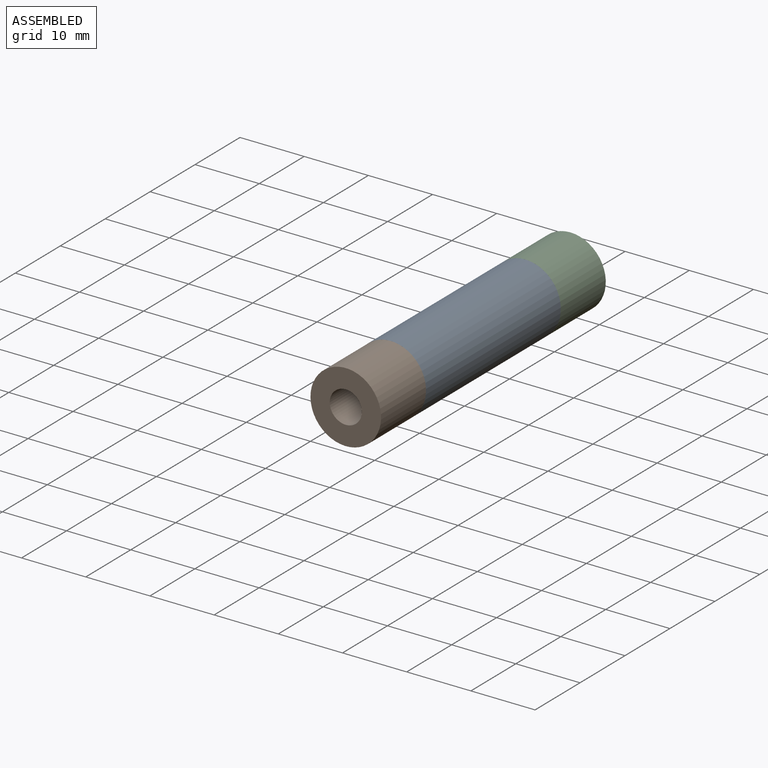
[diagram: assembled view]
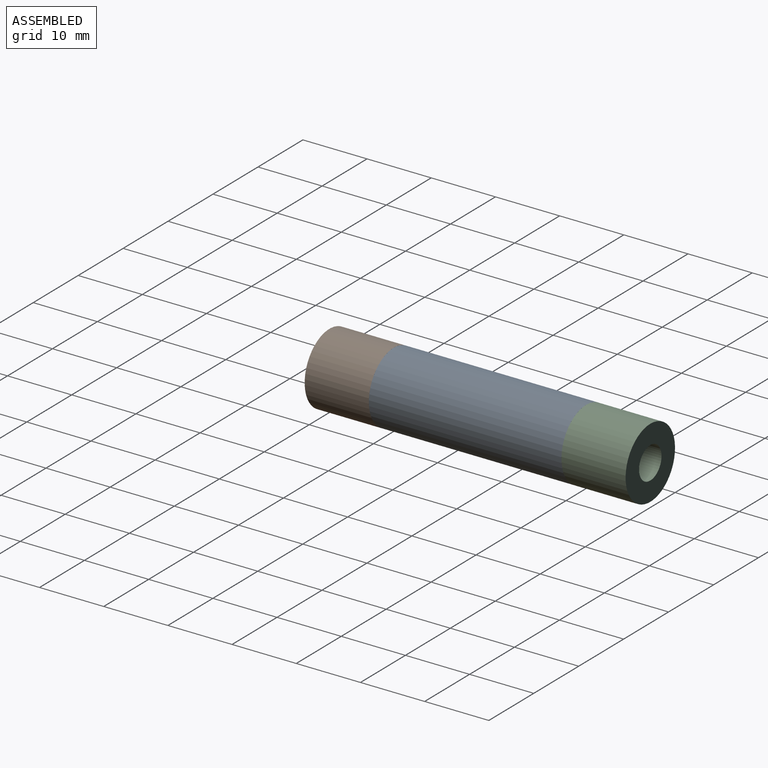
[diagram: assembled view, second angle]
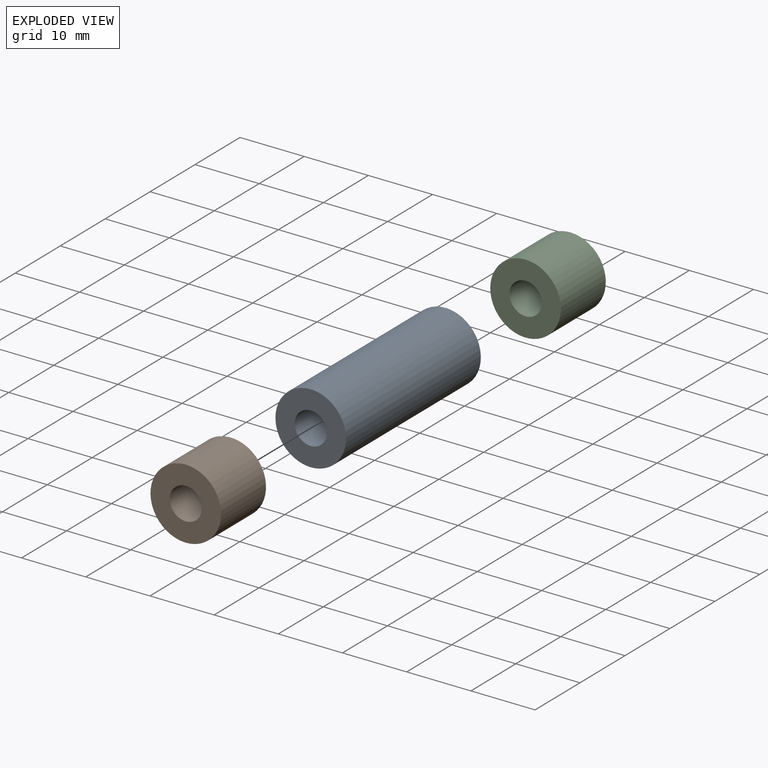
[diagram: exploded view]
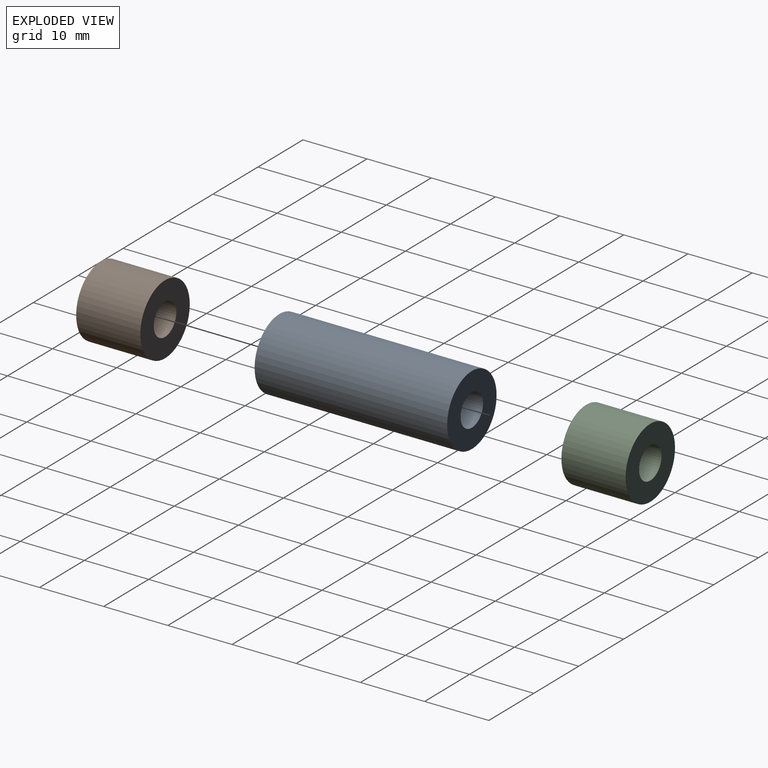
[diagram: exploded view, second angle]
ASSEMBLY  parts=3 mates=2
PART A: 4 faces, bbox 11x30x11 mm
  f0: cylinder r=2.5mm len=30mm, axis (0,1,0), area 471.2mm2, adj f2,f3
  f1: cylinder r=5.5mm len=30mm, axis (0,1,0), area 1036.7mm2, adj f2,f3
  f2: plane 11x11mm, normal (0,-1,0), area 75.4mm2, adj f0,f1
  f3: plane 11x11mm, normal (0,1,0), area 75.4mm2, adj f0,f1
PART B: 4 faces, bbox 11x10x11 mm
  f0: cylinder r=2.5mm len=10mm, axis (0,1,0), area 157.1mm2, adj f2,f3
  f1: cylinder r=5.5mm len=11mm, axis (0,1,0), area 345.6mm2, adj f2,f3
  f2: plane 11x11mm, normal (0,-1,0), area 75.4mm2, adj f0,f1
  f3: plane 11x11mm, normal (0,1,0), area 75.4mm2, adj f0,f1
PART C: same geometry as B
PLACE A rot(axis=(0,1,0),36.5deg) t=(5.5,40,5.5)mm
PLACE B rot(axis=(0,1,0),81.1deg) t=(5.5,10,5.5)mm
PLACE C rot(axis=(0,-1,0),28.8deg) t=(5.5,50,5.5)mm
MATE revolute C.f0 <-> A.f0  axis (0,-1,0) through (5.5,40,5.5)mm
MATE revolute A.f0 <-> B.f0  axis (0,-1,0) through (5.5,10,5.5)mm
